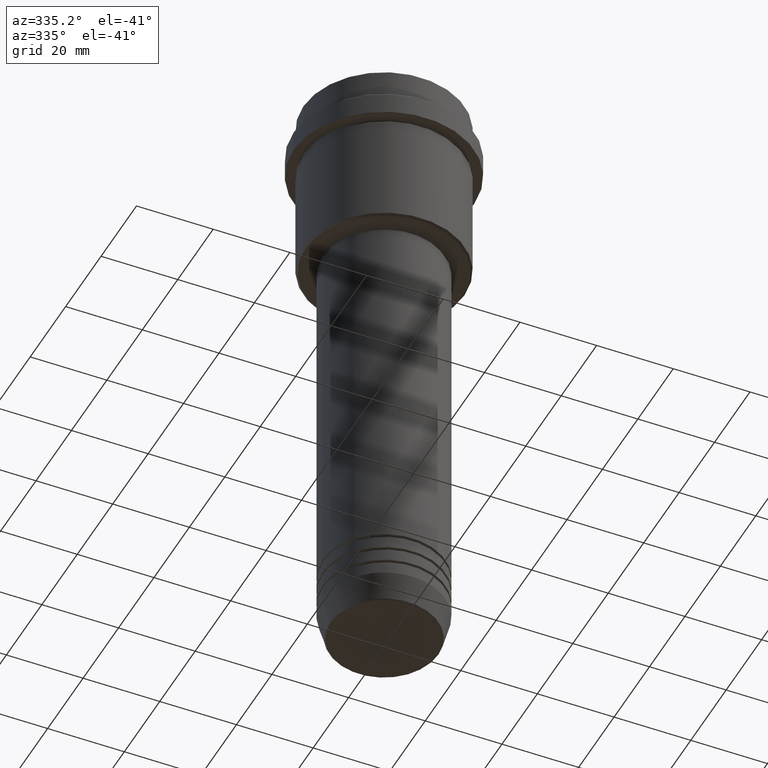
[diagram: clean part render]
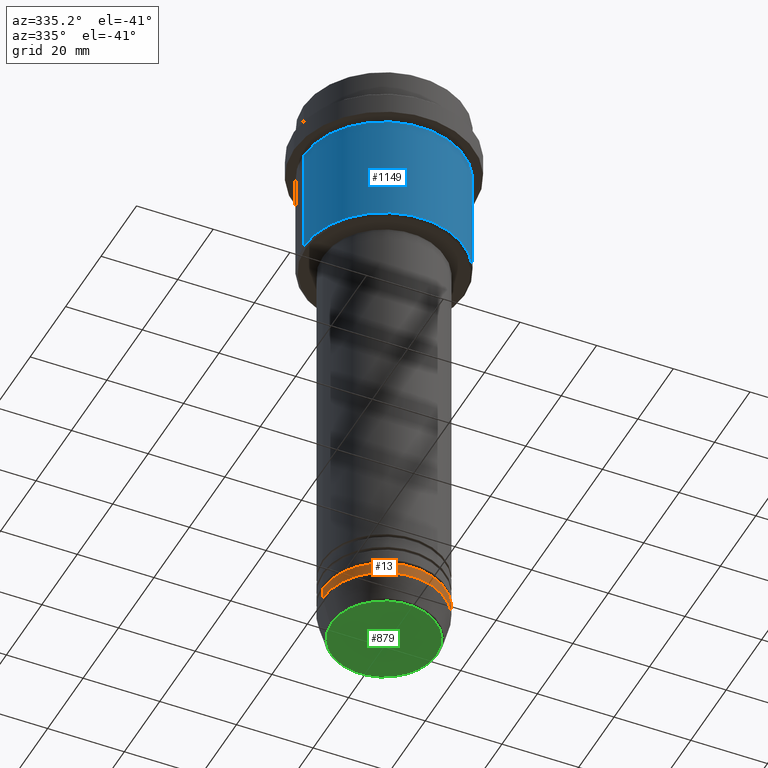
[diagram: same view with three faces highlighted in distinct colors, each labeled with its STEP entity id]
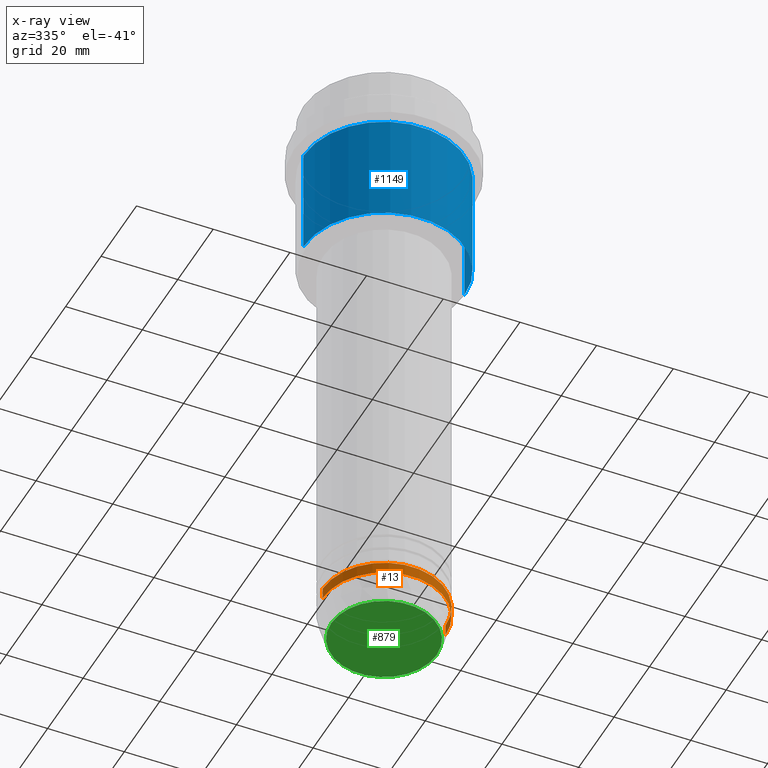
[diagram: x-ray of the same camera — body ghosted, the three highlighted faces saturated]
A machine part, auxiliary view with three faces highlighted in distinct colors.
The next image is the same camera in x-ray (body ghosted, the three faces saturated) — at least one of them is partly hidden behind the body in this view.
Their STEP definitions:

[orange] entity #13 — the highlighted cylindrical surface (partial cylindrical patch) has radius 16 mm, axis along (-0, -0, 1).
#8 = DIRECTION ( 'NONE',  ( -0.000000000000000000, -0.000000000000000000, 1.000000000000000000 ) ) ;
#13 = ADVANCED_FACE ( 'NONE', ( #862 ), #1285, .T. ) ;
#28 = DIRECTION ( 'NONE',  ( 1.000000000000000000, 0.000000000000000000, 0.000000000000000000 ) ) ;
#187 = ORIENTED_EDGE ( 'NONE', *, *, #1337, .T. ) ;
#195 = DIRECTION ( 'NONE',  ( -0.000000000000000000, -0.000000000000000000, 1.000000000000000000 ) ) ;
#200 = VERTEX_POINT ( 'NONE', #1393 ) ;
#269 = ORIENTED_EDGE ( 'NONE', *, *, #613, .T. ) ;
#326 = CIRCLE ( 'NONE', #1246, 16.00000000000000000 ) ;
#369 = VERTEX_POINT ( 'NONE', #828 ) ;
#382 = EDGE_CURVE ( 'NONE', #416, #200, #326, .T. ) ;
#398 = ORIENTED_EDGE ( 'NONE', *, *, #1250, .F. ) ;
#416 = VERTEX_POINT ( 'NONE', #1059 ) ;
#475 = VECTOR ( 'NONE', #759, 1000.000000000000000 ) ;
#509 = CARTESIAN_POINT ( 'NONE',  ( 16.00000000000000000, 0.000000000000000000, 0.000000000000000000 ) ) ;
#542 = DIRECTION ( 'NONE',  ( -0.000000000000000000, -0.000000000000000000, 1.000000000000000000 ) ) ;
#552 = CIRCLE ( 'NONE', #1009, 16.00000000000000000 ) ;
#613 = EDGE_CURVE ( 'NONE', #369, #200, #656, .T. ) ;
#656 = LINE ( 'NONE', #509, #709 ) ;
#709 = VECTOR ( 'NONE', #542, 1000.000000000000000 ) ;
#759 = DIRECTION ( 'NONE',  ( -0.000000000000000000, -0.000000000000000000, 1.000000000000000000 ) ) ;
#803 = VERTEX_POINT ( 'NONE', #1217 ) ;
#828 = CARTESIAN_POINT ( 'NONE',  ( 16.00000000000000000, 0.000000000000000000, -153.0000000000000000 ) ) ;
#862 = FACE_OUTER_BOUND ( 'NONE', #902, .T. ) ;
#867 = CARTESIAN_POINT ( 'NONE',  ( -16.00000000000000000, 1.959434878635765131E-15, 0.000000000000000000 ) ) ;
#887 = DIRECTION ( 'NONE',  ( 1.000000000000000000, 0.000000000000000000, 0.000000000000000000 ) ) ;
#902 = EDGE_LOOP ( 'NONE', ( #398, #187, #269, #981 ) ) ;
#973 = DIRECTION ( 'NONE',  ( -0.000000000000000000, -0.000000000000000000, 1.000000000000000000 ) ) ;
#981 = ORIENTED_EDGE ( 'NONE', *, *, #382, .F. ) ;
#1009 = AXIS2_PLACEMENT_3D ( 'NONE', #1219, #8, #28 ) ;
#1059 = CARTESIAN_POINT ( 'NONE',  ( -16.00000000000000000, 1.959434878635765131E-15, -150.0000000000000000 ) ) ;
#1136 = CARTESIAN_POINT ( 'NONE',  ( 0.000000000000000000, 0.000000000000000000, -150.0000000000000000 ) ) ;
#1176 = CARTESIAN_POINT ( 'NONE',  ( 0.000000000000000000, 0.000000000000000000, 0.000000000000000000 ) ) ;
#1217 = CARTESIAN_POINT ( 'NONE',  ( -16.00000000000000000, 1.959434878635765131E-15, -153.0000000000000000 ) ) ;
#1219 = CARTESIAN_POINT ( 'NONE',  ( 0.000000000000000000, 0.000000000000000000, -153.0000000000000000 ) ) ;
#1246 = AXIS2_PLACEMENT_3D ( 'NONE', #1136, #195, #887 ) ;
#1250 = EDGE_CURVE ( 'NONE', #803, #416, #1410, .T. ) ;
#1266 = AXIS2_PLACEMENT_3D ( 'NONE', #1176, #973, #1391 ) ;
#1285 = CYLINDRICAL_SURFACE ( 'NONE', #1266, 16.00000000000000000 ) ;
#1337 = EDGE_CURVE ( 'NONE', #803, #369, #552, .T. ) ;
#1391 = DIRECTION ( 'NONE',  ( 1.000000000000000000, 0.000000000000000000, 0.000000000000000000 ) ) ;
#1393 = CARTESIAN_POINT ( 'NONE',  ( 16.00000000000000000, 0.000000000000000000, -150.0000000000000000 ) ) ;
#1410 = LINE ( 'NONE', #867, #475 ) ;

[blue] entity #1149 — the highlighted cylindrical surface (partial cylindrical patch) has radius 21 mm, axis along (-0, -0, 1).
#66 = VERTEX_POINT ( 'NONE', #700 ) ;
#71 = CARTESIAN_POINT ( 'NONE',  ( -21.00000000000000000, 2.571758278209441661E-15, 0.000000000000000000 ) ) ;
#183 = LINE ( 'NONE', #71, #550 ) ;
#190 = VECTOR ( 'NONE', #766, 1000.000000000000000 ) ;
#240 = ORIENTED_EDGE ( 'NONE', *, *, #1186, .F. ) ;
#307 = AXIS2_PLACEMENT_3D ( 'NONE', #1086, #1309, #972 ) ;
#317 = EDGE_CURVE ( 'NONE', #965, #66, #395, .T. ) ;
#368 = CARTESIAN_POINT ( 'NONE',  ( -21.00000000000000000, 2.571758278209441661E-15, -44.50000000000000000 ) ) ;
#375 = FACE_OUTER_BOUND ( 'NONE', #1275, .T. ) ;
#395 = CIRCLE ( 'NONE', #758, 21.00000000000000000 ) ;
#550 = VECTOR ( 'NONE', #1065, 1000.000000000000000 ) ;
#610 = DIRECTION ( 'NONE',  ( 1.000000000000000000, 0.000000000000000000, 0.000000000000000000 ) ) ;
#642 = ORIENTED_EDGE ( 'NONE', *, *, #1047, .F. ) ;
#645 = VERTEX_POINT ( 'NONE', #704 ) ;
#700 = CARTESIAN_POINT ( 'NONE',  ( 21.00000000000000000, 0.000000000000000000, -44.50000000000000000 ) ) ;
#704 = CARTESIAN_POINT ( 'NONE',  ( -21.00000000000000000, 2.571758278209441661E-15, -16.00000000000000355 ) ) ;
#756 = DIRECTION ( 'NONE',  ( -0.000000000000000000, -0.000000000000000000, 1.000000000000000000 ) ) ;
#758 = AXIS2_PLACEMENT_3D ( 'NONE', #1334, #756, #1407 ) ;
#760 = EDGE_CURVE ( 'NONE', #66, #1144, #994, .T. ) ;
#766 = DIRECTION ( 'NONE',  ( -0.000000000000000000, -0.000000000000000000, 1.000000000000000000 ) ) ;
#808 = AXIS2_PLACEMENT_3D ( 'NONE', #844, #1251, #610 ) ;
#824 = ORIENTED_EDGE ( 'NONE', *, *, #317, .T. ) ;
#844 = CARTESIAN_POINT ( 'NONE',  ( 0.000000000000000000, 0.000000000000000000, 0.000000000000000000 ) ) ;
#940 = CIRCLE ( 'NONE', #307, 21.00000000000000000 ) ;
#965 = VERTEX_POINT ( 'NONE', #368 ) ;
#972 = DIRECTION ( 'NONE',  ( 1.000000000000000000, 0.000000000000000000, 0.000000000000000000 ) ) ;
#994 = LINE ( 'NONE', #1294, #190 ) ;
#1047 = EDGE_CURVE ( 'NONE', #965, #645, #183, .T. ) ;
#1065 = DIRECTION ( 'NONE',  ( -0.000000000000000000, -0.000000000000000000, 1.000000000000000000 ) ) ;
#1086 = CARTESIAN_POINT ( 'NONE',  ( 0.000000000000000000, 0.000000000000000000, -16.00000000000000355 ) ) ;
#1144 = VERTEX_POINT ( 'NONE', #1169 ) ;
#1149 = ADVANCED_FACE ( 'NONE', ( #375 ), #1284, .T. ) ;
#1169 = CARTESIAN_POINT ( 'NONE',  ( 21.00000000000000000, 0.000000000000000000, -16.00000000000000355 ) ) ;
#1186 = EDGE_CURVE ( 'NONE', #645, #1144, #940, .T. ) ;
#1251 = DIRECTION ( 'NONE',  ( -0.000000000000000000, -0.000000000000000000, 1.000000000000000000 ) ) ;
#1275 = EDGE_LOOP ( 'NONE', ( #642, #824, #1409, #240 ) ) ;
#1284 = CYLINDRICAL_SURFACE ( 'NONE', #808, 21.00000000000000000 ) ;
#1294 = CARTESIAN_POINT ( 'NONE',  ( 21.00000000000000000, 0.000000000000000000, 0.000000000000000000 ) ) ;
#1309 = DIRECTION ( 'NONE',  ( -0.000000000000000000, -0.000000000000000000, 1.000000000000000000 ) ) ;
#1334 = CARTESIAN_POINT ( 'NONE',  ( 0.000000000000000000, 0.000000000000000000, -44.50000000000000000 ) ) ;
#1407 = DIRECTION ( 'NONE',  ( -1.000000000000000000, 0.000000000000000000, 0.000000000000000000 ) ) ;
#1409 = ORIENTED_EDGE ( 'NONE', *, *, #760, .T. ) ;

[green] entity #879 — the highlighted planar face has unit normal (0, -0, 1).
#84 = DIRECTION ( 'NONE',  ( 1.000000000000000000, 0.000000000000000000, 0.000000000000000000 ) ) ;
#91 = CARTESIAN_POINT ( 'NONE',  ( 0.000000000000000000, 0.000000000000000000, -159.9999999999999716 ) ) ;
#137 = CIRCLE ( 'NONE', #1382, 13.74069215899266538 ) ;
#255 = AXIS2_PLACEMENT_3D ( 'NONE', #901, #355, #84 ) ;
#272 = FACE_OUTER_BOUND ( 'NONE', #993, .T. ) ;
#292 = DIRECTION ( 'NONE',  ( 0.000000000000000000, 0.000000000000000000, -1.000000000000000000 ) ) ;
#294 = ORIENTED_EDGE ( 'NONE', *, *, #698, .T. ) ;
#323 = VERTEX_POINT ( 'NONE', #657 ) ;
#355 = DIRECTION ( 'NONE',  ( 0.000000000000000000, -0.000000000000000000, 1.000000000000000000 ) ) ;
#437 = DIRECTION ( 'NONE',  ( 0.000000000000000000, 0.000000000000000000, -1.000000000000000000 ) ) ;
#462 = ORIENTED_EDGE ( 'NONE', *, *, #789, .T. ) ;
#649 = VERTEX_POINT ( 'NONE', #1128 ) ;
#657 = CARTESIAN_POINT ( 'NONE',  ( -13.74069215899266538, 1.712322416342416577E-15, -159.9999999999999716 ) ) ;
#698 = EDGE_CURVE ( 'NONE', #323, #649, #985, .T. ) ;
#789 = EDGE_CURVE ( 'NONE', #649, #323, #137, .T. ) ;
#879 = ADVANCED_FACE ( 'NONE', ( #272 ), #998, .F. ) ;
#901 = CARTESIAN_POINT ( 'NONE',  ( 0.000000000000000000, 0.000000000000000000, -159.9999999999999716 ) ) ;
#985 = CIRCLE ( 'NONE', #986, 13.74069215899266538 ) ;
#986 = AXIS2_PLACEMENT_3D ( 'NONE', #1373, #292, #1168 ) ;
#993 = EDGE_LOOP ( 'NONE', ( #462, #294 ) ) ;
#998 = PLANE ( 'NONE',  #255 ) ;
#1128 = CARTESIAN_POINT ( 'NONE',  ( 13.74069215899266538, 0.000000000000000000, -159.9999999999999716 ) ) ;
#1168 = DIRECTION ( 'NONE',  ( 1.000000000000000000, 0.000000000000000000, 0.000000000000000000 ) ) ;
#1373 = CARTESIAN_POINT ( 'NONE',  ( 0.000000000000000000, 0.000000000000000000, -159.9999999999999716 ) ) ;
#1382 = AXIS2_PLACEMENT_3D ( 'NONE', #91, #437, #1400 ) ;
#1400 = DIRECTION ( 'NONE',  ( 1.000000000000000000, 0.000000000000000000, 0.000000000000000000 ) ) ;